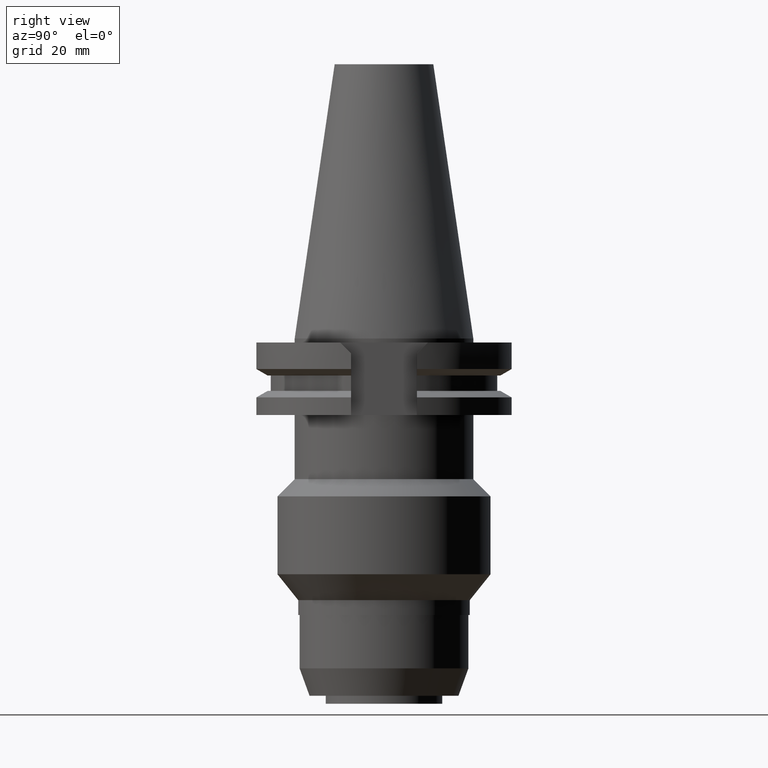
[diagram: clean part render]
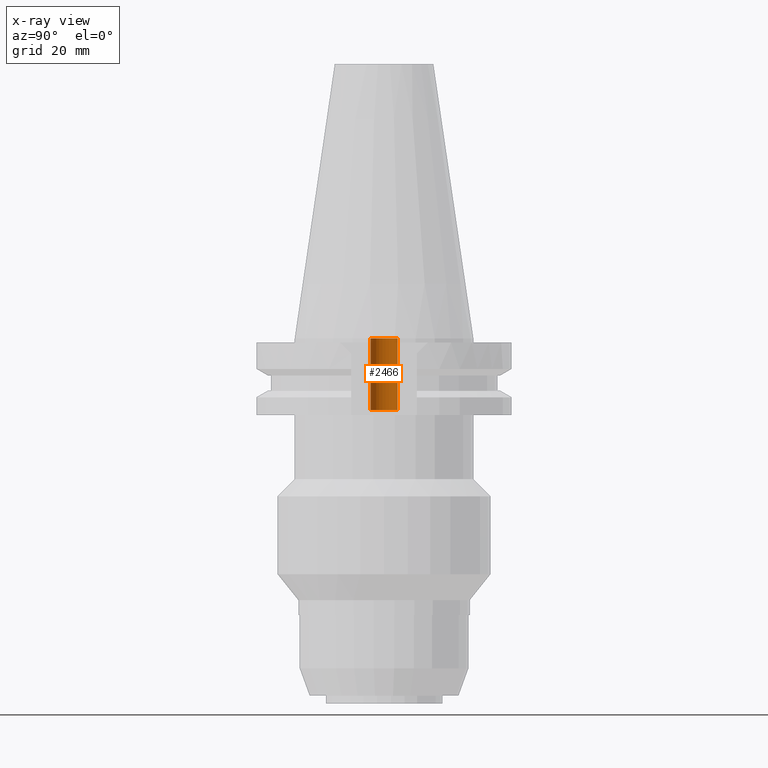
[diagram: x-ray — body ghosted, one internal face saturated and labeled with its STEP entity id]
A machine part, right view, then the same camera in x-ray: the body is ghosted and one INTERNAL B-rep face — a face not visible from any outside direction — is saturated and labeled: STEP entity #2466.
In plain terms, the highlighted cylindrical surface (edge-blend (fillet) strip) has radius 3.4 mm, axis along (0, 0, -1).
Its self-contained STEP definition (entity closure, byte-faithful):
#1166=CARTESIAN_POINT('',(0.E0,2.157919508608E-14,-1.79E1));
#1167=DIRECTION('',(0.E0,0.E0,-1.E0));
#1168=DIRECTION('',(0.E0,-1.E0,0.E0));
#1169=AXIS2_PLACEMENT_3D('',#1166,#1167,#1168);
#1182=DIRECTION('',(0.E0,0.E0,1.E0));
#1183=VECTOR('',#1182,1.79E1);
#1184=CARTESIAN_POINT('',(0.E0,-3.4E0,-1.79E1));
#1185=LINE('',#1184,#1183);
#1189=CARTESIAN_POINT('',(0.E0,2.157919508608E-14,1.421085471520E-14));
#1190=DIRECTION('',(0.E0,0.E0,-1.E0));
#1191=DIRECTION('',(0.E0,-1.E0,0.E0));
#1192=AXIS2_PLACEMENT_3D('',#1189,#1190,#1191);
#1197=DIRECTION('',(0.E0,0.E0,1.E0));
#1198=VECTOR('',#1197,1.79E1);
#1199=CARTESIAN_POINT('',(0.E0,3.4E0,-1.79E1));
#1200=LINE('',#1199,#1198);
#1342=CARTESIAN_POINT('',(0.E0,3.4E0,1.421085471520E-14));
#1343=VERTEX_POINT('',#1342);
#1344=CARTESIAN_POINT('',(0.E0,-3.4E0,1.421085471520E-14));
#1345=VERTEX_POINT('',#1344);
#1346=CARTESIAN_POINT('',(0.E0,3.4E0,-1.79E1));
#1347=VERTEX_POINT('',#1346);
#1348=CARTESIAN_POINT('',(0.E0,-3.4E0,-1.79E1));
#1349=VERTEX_POINT('',#1348);
#2452=CARTESIAN_POINT('',(0.E0,2.157919508608E-14,7.62075E1));
#2453=DIRECTION('',(0.E0,0.E0,-1.E0));
#2454=DIRECTION('',(0.E0,-1.E0,0.E0));
#2455=AXIS2_PLACEMENT_3D('',#2452,#2453,#2454);
#2456=CYLINDRICAL_SURFACE('',#2455,3.4E0);
#2458=ORIENTED_EDGE('',*,*,#2457,.F.);
#2459=ORIENTED_EDGE('',*,*,#2445,.F.);
#2461=ORIENTED_EDGE('',*,*,#2460,.T.);
#2463=ORIENTED_EDGE('',*,*,#2462,.T.);
#2464=EDGE_LOOP('',(#2458,#2459,#2461,#2463));
#2465=FACE_OUTER_BOUND('',#2464,.F.);
#1170=CIRCLE('',#1169,3.4E0);
#1193=CIRCLE('',#1192,3.4E0);
#2445=EDGE_CURVE('',#1349,#1347,#1170,.T.);
#2457=EDGE_CURVE('',#1347,#1343,#1200,.T.);
#2460=EDGE_CURVE('',#1349,#1345,#1185,.T.);
#2462=EDGE_CURVE('',#1345,#1343,#1193,.T.);
#2466=ADVANCED_FACE('',(#2465),#2456,.F.);